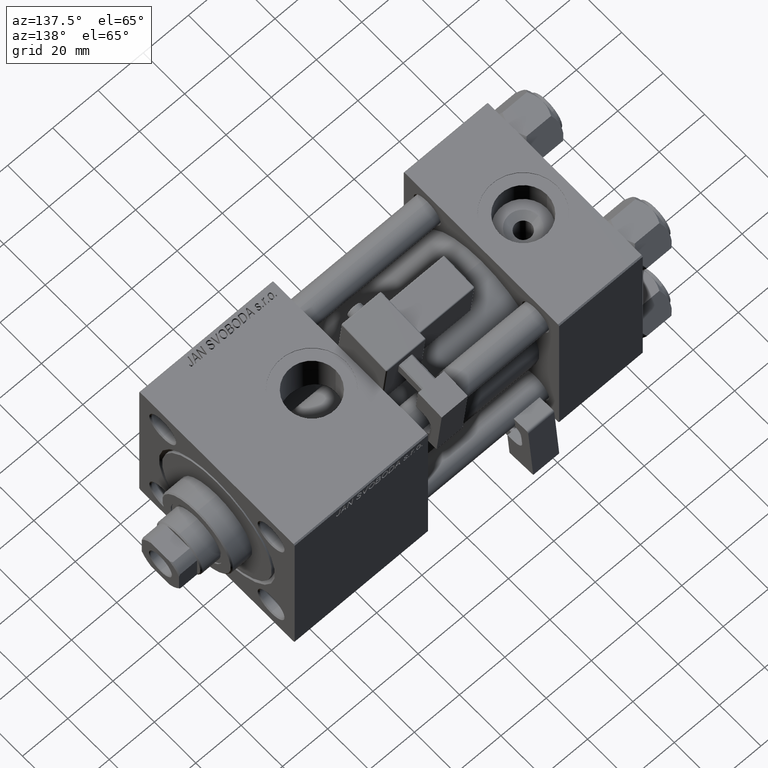
[diagram: clean part render]
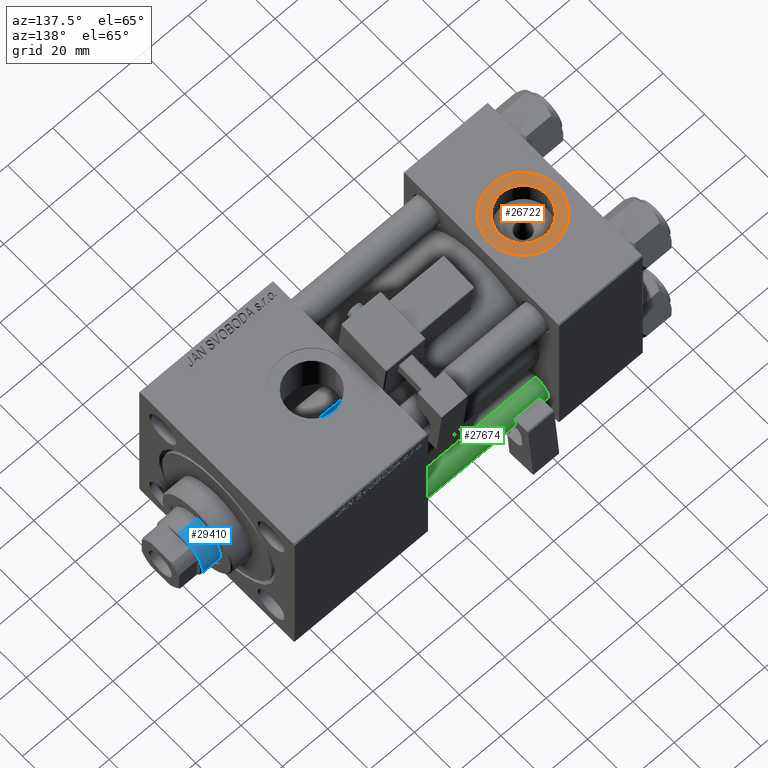
[diagram: same view with three faces highlighted in distinct colors, each labeled with its STEP entity id]
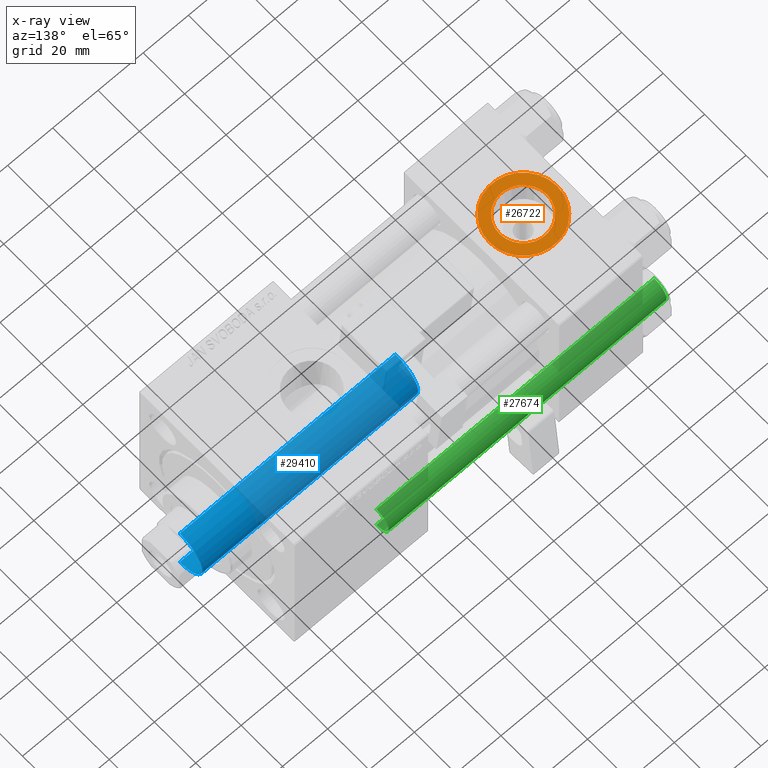
[diagram: x-ray of the same camera — body ghosted, the three highlighted faces saturated]
A machine part, auxiliary view with three faces highlighted in distinct colors.
The next image is the same camera in x-ray (body ghosted, the three faces saturated) — at least one of them is partly hidden behind the body in this view.
Their STEP definitions:

[orange] entity #26722 — the highlighted planar face has unit normal (0, 0, 1).
#91 = DIRECTION ( 'NONE',  ( 1.000000000000000000, 0.000000000000000000, 0.000000000000000000 ) ) ;
#1158 = DIRECTION ( 'NONE',  ( 1.000000000000000000, 0.000000000000000000, -0.000000000000000000 ) ) ;
#2019 = CIRCLE ( 'NONE', #27439, 10.48000000000000043 ) ;
#2189 = CARTESIAN_POINT ( 'NONE',  ( 3.499999999999997780, -3.367200229209391300E-15, 37.29999999999999716 ) ) ;
#2299 = EDGE_CURVE ( 'NONE', #35239, #6254, #40231, .T. ) ;
#3788 = DIRECTION ( 'NONE',  ( 0.000000000000000000, 0.000000000000000000, 1.000000000000000000 ) ) ;
#5155 = FACE_BOUND ( 'NONE', #6122, .T. ) ;
#6076 = CARTESIAN_POINT ( 'NONE',  ( 18.50000000000000000, -5.204170427930421283E-15, 37.29999999999999716 ) ) ;
#6122 = EDGE_LOOP ( 'NONE', ( #41106, #29335 ) ) ;
#6254 = VERTEX_POINT ( 'NONE', #2189 ) ;
#7416 = ORIENTED_EDGE ( 'NONE', *, *, #2299, .T. ) ;
#9336 = CARTESIAN_POINT ( 'NONE',  ( 8.019999999999999574, -3.920740582423995006E-15, 37.29999999999999716 ) ) ;
#9665 = CARTESIAN_POINT ( 'NONE',  ( 18.50000000000000000, -5.204170427930421283E-15, 37.29999999999999716 ) ) ;
#9772 = AXIS2_PLACEMENT_3D ( 'NONE', #42014, #41499, #50221 ) ;
#15465 = CARTESIAN_POINT ( 'NONE',  ( 18.50000000000000000, -5.204170427930421283E-15, 37.29999999999999716 ) ) ;
#16984 = ORIENTED_EDGE ( 'NONE', *, *, #49913, .T. ) ;
#17887 = VERTEX_POINT ( 'NONE', #9336 ) ;
#18521 = DIRECTION ( 'NONE',  ( 1.000000000000000000, 0.000000000000000000, 0.000000000000000000 ) ) ;
#20620 = EDGE_CURVE ( 'NONE', #17887, #36888, #2019, .T. ) ;
#25493 = AXIS2_PLACEMENT_3D ( 'NONE', #15465, #3788, #91 ) ;
#26674 = CARTESIAN_POINT ( 'NONE',  ( 33.50000000000000000, -5.204170427930421283E-15, 37.29999999999999716 ) ) ;
#26722 = ADVANCED_FACE ( 'NONE', ( #5155, #49386 ), #30301, .T. ) ;
#26793 = AXIS2_PLACEMENT_3D ( 'NONE', #9665, #34041, #30062 ) ;
#27351 = EDGE_LOOP ( 'NONE', ( #7416, #16984 ) ) ;
#27439 = AXIS2_PLACEMENT_3D ( 'NONE', #6076, #38152, #18521 ) ;
#29335 = ORIENTED_EDGE ( 'NONE', *, *, #20620, .F. ) ;
#29779 = DIRECTION ( 'NONE',  ( 0.000000000000000000, 0.000000000000000000, 1.000000000000000000 ) ) ;
#30062 = DIRECTION ( 'NONE',  ( 1.000000000000000000, 0.000000000000000000, 0.000000000000000000 ) ) ;
#30301 = PLANE ( 'NONE',  #44453 ) ;
#30540 = CARTESIAN_POINT ( 'NONE',  ( 28.98000000000000043, -5.204170427930421283E-15, 37.29999999999999716 ) ) ;
#34041 = DIRECTION ( 'NONE',  ( 0.000000000000000000, 0.000000000000000000, 1.000000000000000000 ) ) ;
#35239 = VERTEX_POINT ( 'NONE', #26674 ) ;
#36888 = VERTEX_POINT ( 'NONE', #30540 ) ;
#38152 = DIRECTION ( 'NONE',  ( 0.000000000000000000, 0.000000000000000000, 1.000000000000000000 ) ) ;
#40231 = CIRCLE ( 'NONE', #9772, 15.00000000000000355 ) ;
#41106 = ORIENTED_EDGE ( 'NONE', *, *, #45622, .F. ) ;
#41499 = DIRECTION ( 'NONE',  ( 0.000000000000000000, 0.000000000000000000, 1.000000000000000000 ) ) ;
#42014 = CARTESIAN_POINT ( 'NONE',  ( 18.50000000000000000, -5.204170427930421283E-15, 37.29999999999999716 ) ) ;
#44453 = AXIS2_PLACEMENT_3D ( 'NONE', #45411, #29779, #1158 ) ;
#45411 = CARTESIAN_POINT ( 'NONE',  ( 18.50000000000000000, -5.204170427930421283E-15, 37.29999999999999716 ) ) ;
#45622 = EDGE_CURVE ( 'NONE', #36888, #17887, #48342, .T. ) ;
#48342 = CIRCLE ( 'NONE', #25493, 10.48000000000000043 ) ;
#49386 = FACE_OUTER_BOUND ( 'NONE', #27351, .T. ) ;
#49620 = CIRCLE ( 'NONE', #26793, 15.00000000000000355 ) ;
#49913 = EDGE_CURVE ( 'NONE', #6254, #35239, #49620, .T. ) ;
#50221 = DIRECTION ( 'NONE',  ( 1.000000000000000000, 0.000000000000000000, 0.000000000000000000 ) ) ;

[blue] entity #29410 — the highlighted cylindrical surface (edge-blend (fillet) strip) has radius 11 mm, axis along (-1, 0, 0).
#961 = DIRECTION ( 'NONE',  ( -1.000000000000000000, 0.000000000000000000, 0.000000000000000000 ) ) ;
#2197 = AXIS2_PLACEMENT_3D ( 'NONE', #37280, #24022, #961 ) ;
#3634 = VERTEX_POINT ( 'NONE', #38269 ) ;
#7549 = ORIENTED_EDGE ( 'NONE', *, *, #44188, .T. ) ;
#8984 = VERTEX_POINT ( 'NONE', #26661 ) ;
#9896 = CARTESIAN_POINT ( 'NONE',  ( 11.00000000000000000, 1.347111479062088405E-15, 133.5000000000000000 ) ) ;
#10011 = AXIS2_PLACEMENT_3D ( 'NONE', #14193, #46505, #10216 ) ;
#10216 = DIRECTION ( 'NONE',  ( 1.000000000000000000, 0.000000000000000000, 0.000000000000000000 ) ) ;
#10287 = LINE ( 'NONE', #42070, #16048 ) ;
#10707 = EDGE_CURVE ( 'NONE', #16988, #3634, #41245, .T. ) ;
#11980 = VERTEX_POINT ( 'NONE', #35331 ) ;
#14193 = CARTESIAN_POINT ( 'NONE',  ( 0.000000000000000000, 0.000000000000000000, 133.5000000000000000 ) ) ;
#14419 = DIRECTION ( 'NONE',  ( 1.000000000000000000, 0.000000000000000000, 0.000000000000000000 ) ) ;
#15755 = EDGE_CURVE ( 'NONE', #16988, #11980, #10287, .T. ) ;
#16048 = VECTOR ( 'NONE', #41295, 1000.000000000000000 ) ;
#16547 = AXIS2_PLACEMENT_3D ( 'NONE', #31347, #39568, #14419 ) ;
#16988 = VERTEX_POINT ( 'NONE', #9896 ) ;
#21089 = CYLINDRICAL_SURFACE ( 'NONE', #2197, 11.00000000000000000 ) ;
#24022 = DIRECTION ( 'NONE',  ( -0.000000000000000000, -0.000000000000000000, -1.000000000000000000 ) ) ;
#26661 = CARTESIAN_POINT ( 'NONE',  ( -11.00000000000000000, 0.000000000000000000, 38.00000000000000000 ) ) ;
#26922 = EDGE_CURVE ( 'NONE', #8984, #11980, #28392, .T. ) ;
#28392 = CIRCLE ( 'NONE', #16547, 11.00000000000000000 ) ;
#29410 = ADVANCED_FACE ( 'NONE', ( #41237 ), #21089, .T. ) ;
#31347 = CARTESIAN_POINT ( 'NONE',  ( 0.000000000000000000, 0.000000000000000000, 38.00000000000000000 ) ) ;
#31976 = ORIENTED_EDGE ( 'NONE', *, *, #15755, .F. ) ;
#32234 = VECTOR ( 'NONE', #47574, 1000.000000000000000 ) ;
#34883 = LINE ( 'NONE', #51560, #32234 ) ;
#34966 = ORIENTED_EDGE ( 'NONE', *, *, #10707, .T. ) ;
#35331 = CARTESIAN_POINT ( 'NONE',  ( 11.00000000000000000, 1.347111479062088405E-15, 38.00000000000000000 ) ) ;
#37280 = CARTESIAN_POINT ( 'NONE',  ( 0.000000000000000000, 0.000000000000000000, 134.0000000000000000 ) ) ;
#38269 = CARTESIAN_POINT ( 'NONE',  ( -11.00000000000000000, 0.000000000000000000, 133.5000000000000000 ) ) ;
#38317 = EDGE_LOOP ( 'NONE', ( #31976, #34966, #7549, #45079 ) ) ;
#39568 = DIRECTION ( 'NONE',  ( 0.000000000000000000, 0.000000000000000000, 1.000000000000000000 ) ) ;
#41237 = FACE_OUTER_BOUND ( 'NONE', #38317, .T. ) ;
#41245 = CIRCLE ( 'NONE', #10011, 11.00000000000000000 ) ;
#41295 = DIRECTION ( 'NONE',  ( -0.000000000000000000, -0.000000000000000000, -1.000000000000000000 ) ) ;
#42070 = CARTESIAN_POINT ( 'NONE',  ( 11.00000000000000000, 1.347111479062088405E-15, 134.0000000000000000 ) ) ;
#44188 = EDGE_CURVE ( 'NONE', #3634, #8984, #34883, .T. ) ;
#45079 = ORIENTED_EDGE ( 'NONE', *, *, #26922, .T. ) ;
#46505 = DIRECTION ( 'NONE',  ( 0.000000000000000000, 0.000000000000000000, -1.000000000000000000 ) ) ;
#47574 = DIRECTION ( 'NONE',  ( -0.000000000000000000, -0.000000000000000000, -1.000000000000000000 ) ) ;
#51560 = CARTESIAN_POINT ( 'NONE',  ( -11.00000000000000000, 0.000000000000000000, 134.0000000000000000 ) ) ;

[green] entity #27674 — the highlighted cylindrical surface (edge-blend (fillet) strip) has radius 6 mm, axis along (1, -0, -0).
#1035 = CYLINDRICAL_SURFACE ( 'NONE', #18239, 6.000000000000000888 ) ;
#2966 = EDGE_CURVE ( 'NONE', #10826, #29054, #47678, .T. ) ;
#4244 = DIRECTION ( 'NONE',  ( -0.000000000000000000, -0.000000000000000000, -1.000000000000000000 ) ) ;
#4747 = AXIS2_PLACEMENT_3D ( 'NONE', #25941, #30180, #33367 ) ;
#8047 = CARTESIAN_POINT ( 'NONE',  ( 0.000000000000000000, 0.000000000000000000, 0.4999999999999865663 ) ) ;
#8237 = CARTESIAN_POINT ( 'NONE',  ( 6.000000000000000888, 7.347880794884120722E-16, 124.0000000000000000 ) ) ;
#9178 = CARTESIAN_POINT ( 'NONE',  ( 6.000000000000000888, 7.347880794884120722E-16, 0.4999999999999865663 ) ) ;
#10826 = VERTEX_POINT ( 'NONE', #50940 ) ;
#13224 = DIRECTION ( 'NONE',  ( -1.000000000000000000, 0.000000000000000000, 0.000000000000000000 ) ) ;
#17194 = CARTESIAN_POINT ( 'NONE',  ( 0.000000000000000000, 0.000000000000000000, 124.0000000000000000 ) ) ;
#18239 = AXIS2_PLACEMENT_3D ( 'NONE', #17194, #33358, #13224 ) ;
#19952 = DIRECTION ( 'NONE',  ( -0.000000000000000000, -0.000000000000000000, 1.000000000000000000 ) ) ;
#20660 = DIRECTION ( 'NONE',  ( -0.000000000000000000, -0.000000000000000000, -1.000000000000000000 ) ) ;
#20803 = CIRCLE ( 'NONE', #4747, 6.000000000000000888 ) ;
#21493 = EDGE_CURVE ( 'NONE', #33515, #37564, #33633, .T. ) ;
#25941 = CARTESIAN_POINT ( 'NONE',  ( 0.000000000000000000, 0.000000000000000000, 123.5000000000000426 ) ) ;
#26992 = EDGE_LOOP ( 'NONE', ( #45723, #40042, #27942, #43692 ) ) ;
#27674 = ADVANCED_FACE ( 'NONE', ( #29907 ), #1035, .T. ) ;
#27942 = ORIENTED_EDGE ( 'NONE', *, *, #35634, .T. ) ;
#28646 = EDGE_CURVE ( 'NONE', #10826, #33515, #20803, .T. ) ;
#29054 = VERTEX_POINT ( 'NONE', #42935 ) ;
#29511 = CIRCLE ( 'NONE', #34624, 6.000000000000000888 ) ;
#29907 = FACE_OUTER_BOUND ( 'NONE', #26992, .T. ) ;
#30180 = DIRECTION ( 'NONE',  ( 0.000000000000000000, 0.000000000000000000, -1.000000000000000000 ) ) ;
#33358 = DIRECTION ( 'NONE',  ( -0.000000000000000000, -0.000000000000000000, -1.000000000000000000 ) ) ;
#33367 = DIRECTION ( 'NONE',  ( 1.000000000000000000, 0.000000000000000000, 0.000000000000000000 ) ) ;
#33482 = VECTOR ( 'NONE', #4244, 1000.000000000000000 ) ;
#33515 = VERTEX_POINT ( 'NONE', #50520 ) ;
#33633 = LINE ( 'NONE', #8237, #47698 ) ;
#34624 = AXIS2_PLACEMENT_3D ( 'NONE', #8047, #19952, #51759 ) ;
#35634 = EDGE_CURVE ( 'NONE', #37564, #29054, #29511, .T. ) ;
#37564 = VERTEX_POINT ( 'NONE', #9178 ) ;
#40042 = ORIENTED_EDGE ( 'NONE', *, *, #21493, .T. ) ;
#42935 = CARTESIAN_POINT ( 'NONE',  ( -6.000000000000000888, 0.000000000000000000, 0.4999999999999865663 ) ) ;
#43692 = ORIENTED_EDGE ( 'NONE', *, *, #2966, .F. ) ;
#44776 = CARTESIAN_POINT ( 'NONE',  ( -6.000000000000000888, 0.000000000000000000, 124.0000000000000000 ) ) ;
#45723 = ORIENTED_EDGE ( 'NONE', *, *, #28646, .T. ) ;
#47678 = LINE ( 'NONE', #44776, #33482 ) ;
#47698 = VECTOR ( 'NONE', #20660, 1000.000000000000000 ) ;
#50520 = CARTESIAN_POINT ( 'NONE',  ( 6.000000000000000888, 7.347880794884120722E-16, 123.5000000000000426 ) ) ;
#50940 = CARTESIAN_POINT ( 'NONE',  ( -6.000000000000000888, 0.000000000000000000, 123.5000000000000426 ) ) ;
#51759 = DIRECTION ( 'NONE',  ( 1.000000000000000000, 0.000000000000000000, 0.000000000000000000 ) ) ;